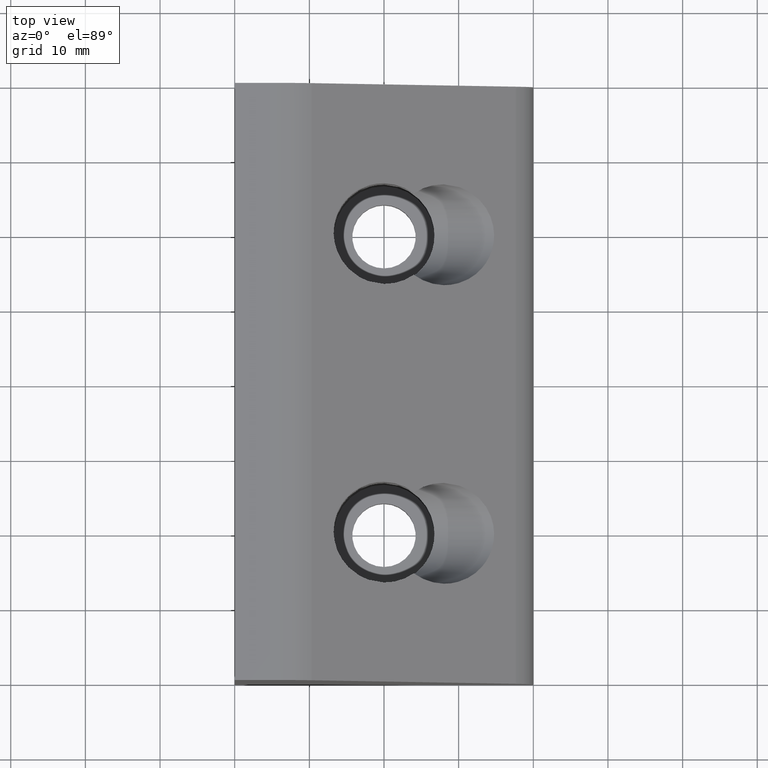
[diagram: clean part render]
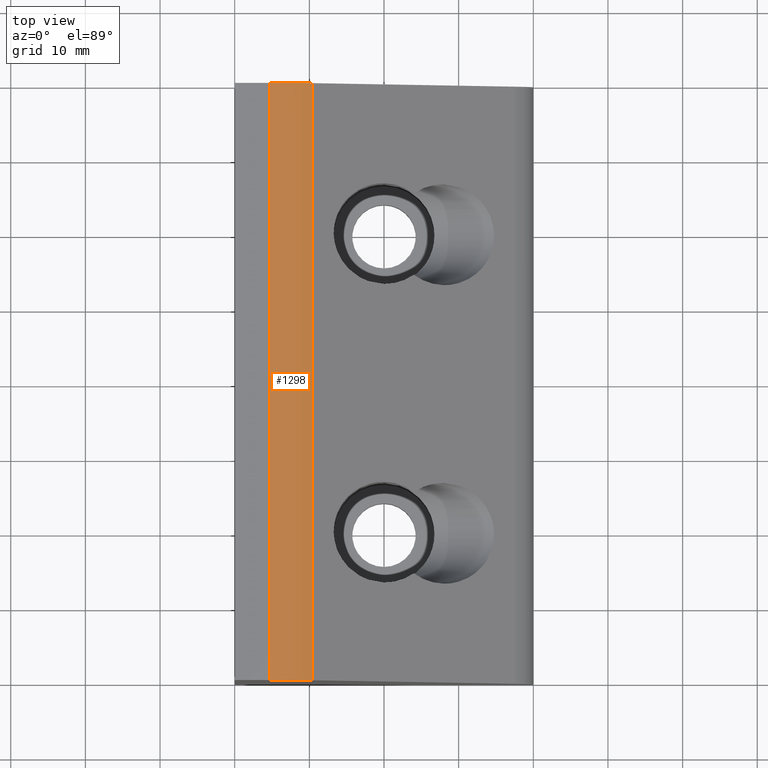
[diagram: same view with one face highlighted and labeled with its STEP entity id]
A machine part, top view. The second image highlights one B-rep face of the part: STEP entity #1298.
In plain terms, the highlighted cylindrical surface (partial cylindrical patch) has radius 8 mm, axis along (-0, -1, 0).
Its self-contained STEP definition (entity closure, byte-faithful):
#717=CARTESIAN_POINT('',(4.686291501015235,-40.0,40.000000000000007));
#718=VERTEX_POINT('',#717);
#725=CARTESIAN_POINT('',(4.686291501015246,40.0,40.000000000000007));
#726=VERTEX_POINT('',#725);
#727=CARTESIAN_POINT('',(4.686291501015235,-40.0,40.000000000000007));
#728=DIRECTION('',(0.0,1.0,0.0));
#729=VECTOR('',#728,80.0);
#730=LINE('',#727,#729);
#731=EDGE_CURVE('',#718,#726,#730,.T.);
#756=CARTESIAN_POINT('',(10.343145750507640,40.0,37.656854249492390));
#757=VERTEX_POINT('',#756);
#758=CARTESIAN_POINT('',(4.686291501015246,40.0,32.000000000000007));
#759=DIRECTION('',(1.224647E-016,1.0,-6.123234E-017));
#760=DIRECTION('',(-1.0,1.224647E-016,-7.498799E-033));
#761=AXIS2_PLACEMENT_3D('',#758,#759,#760);
#762=CIRCLE('',#761,8.0);
#763=EDGE_CURVE('',#726,#757,#762,.T.);
#803=CARTESIAN_POINT('',(10.343145750507629,-40.0,37.656854249492390));
#804=VERTEX_POINT('',#803);
#813=CARTESIAN_POINT('',(4.686291501015235,-40.0,32.000000000000007));
#814=DIRECTION('',(-1.224647E-016,-1.0,6.123234E-017));
#815=DIRECTION('',(-1.0,1.224647E-016,-7.498799E-033));
#816=AXIS2_PLACEMENT_3D('',#813,#814,#815);
#817=CIRCLE('',#816,8.0);
#818=EDGE_CURVE('',#804,#718,#817,.T.);
#1243=CARTESIAN_POINT('',(10.343145750507640,40.0,37.656854249492390));
#1244=DIRECTION('',(0.0,-1.0,0.0));
#1245=VECTOR('',#1244,80.0);
#1246=LINE('',#1243,#1245);
#1247=EDGE_CURVE('',#757,#804,#1246,.T.);
#1287=CARTESIAN_POINT('',(4.686291501015245,40.000000010000001,32.000000000000007));
#1288=DIRECTION('',(-1.224647E-016,-1.0,6.123234E-017));
#1289=DIRECTION('',(1.0,-1.224647E-016,7.498799E-033));
#1290=AXIS2_PLACEMENT_3D('',#1287,#1288,#1289);
#1291=CYLINDRICAL_SURFACE('',#1290,8.0);
#1292=ORIENTED_EDGE('',*,*,#818,.F.);
#1293=ORIENTED_EDGE('',*,*,#1247,.F.);
#1294=ORIENTED_EDGE('',*,*,#763,.F.);
#1295=ORIENTED_EDGE('',*,*,#731,.F.);
#1296=EDGE_LOOP('',(#1292,#1293,#1294,#1295));
#1297=FACE_OUTER_BOUND('',#1296,.T.);
#1298=ADVANCED_FACE('',(#1297),#1291,.T.);